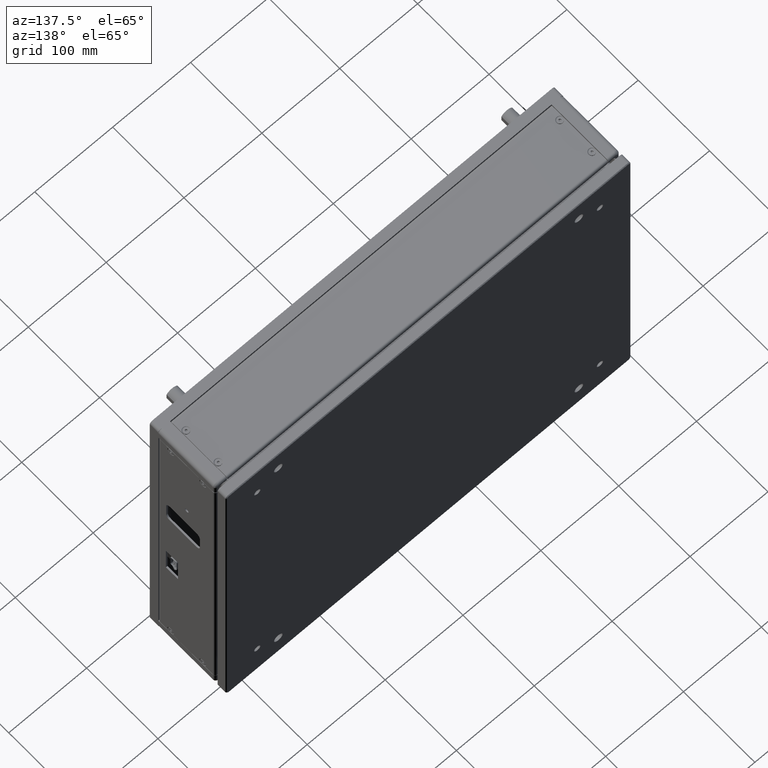
[diagram: clean part render]
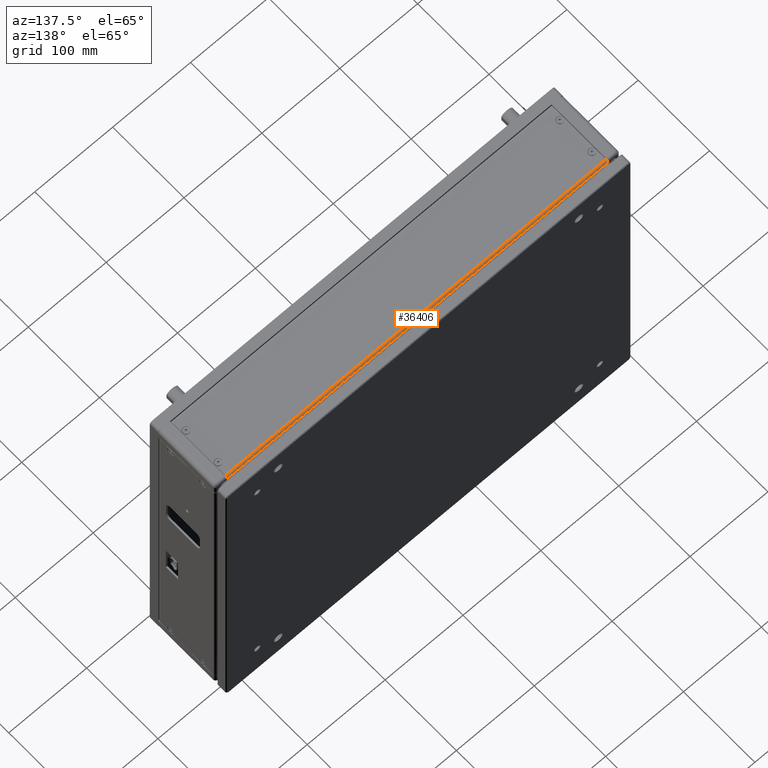
[diagram: same view with one face highlighted and labeled with its STEP entity id]
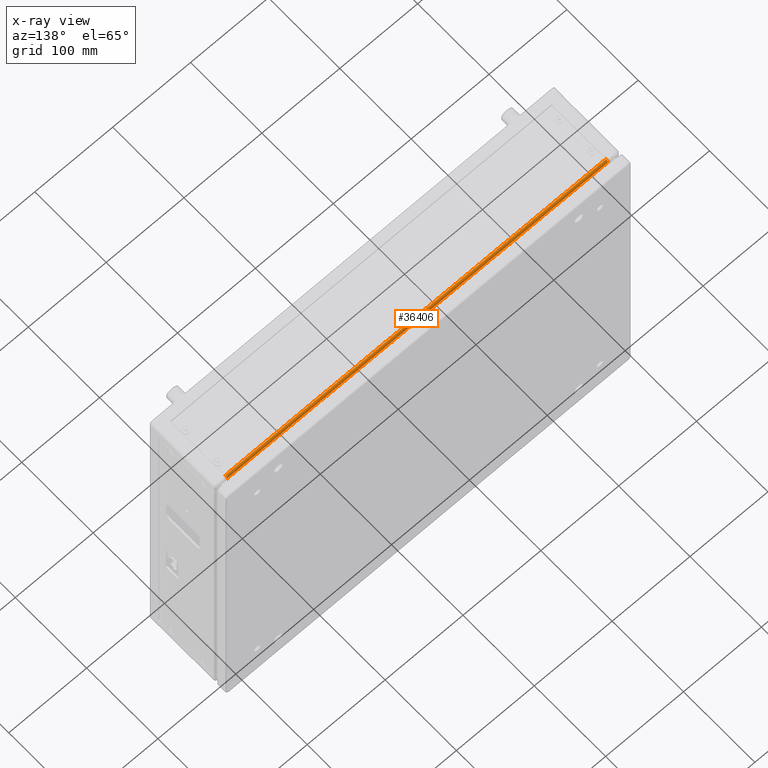
[diagram: x-ray of the same camera — body ghosted, the highlighted face saturated]
A machine part, auxiliary view. The second image highlights one B-rep face of the part: STEP entity #36406.
The next image is the same camera in x-ray: the body ghosted, the highlighted face saturated — about 0% of this face is hidden behind the body in this view.
In plain terms, the highlighted cylindrical surface (edge-blend (fillet) strip) has radius 2.7366 mm, axis along (1, 0, 0).
Its self-contained STEP definition (entity closure, byte-faithful):
#282 = CIRCLE ( 'NONE', #30672, 2.736599999999977939 ) ;
#621 = EDGE_CURVE ( 'NONE', #37031, #37152, #282, .T. ) ;
#3415 = DIRECTION ( 'NONE',  ( 0.000000000000000000, 0.000000000000000000, -1.000000000000000000 ) ) ;
#3705 = VERTEX_POINT ( 'NONE', #19692 ) ;
#3902 = CARTESIAN_POINT ( 'NONE',  ( 208.9512755979877738, 97.63718110050980670, 731.7633999999992511 ) ) ;
#5973 = DIRECTION ( 'NONE',  ( -1.000000000000000000, -0.000000000000000000, -0.000000000000000000 ) ) ;
#9212 = CARTESIAN_POINT ( 'NONE',  ( -280.0487244020122262, 94.90058110050982521, 731.7633999999992511 ) ) ;
#9575 = DIRECTION ( 'NONE',  ( 1.000000000000000000, 0.000000000000000000, 0.000000000000000000 ) ) ;
#9669 = CARTESIAN_POINT ( 'NONE',  ( 208.9512755979877738, 94.90058110050982521, 734.4999999999993179 ) ) ;
#9957 = CYLINDRICAL_SURFACE ( 'NONE', #17639, 2.736599999999977939 ) ;
#10043 = DIRECTION ( 'NONE',  ( -1.000000000000000000, -0.000000000000000000, -0.000000000000000000 ) ) ;
#13340 = AXIS2_PLACEMENT_3D ( 'NONE', #9212, #20936, #15159 ) ;
#13956 = CARTESIAN_POINT ( 'NONE',  ( -280.0487244020122262, 94.90058110050982521, 734.4999999999993179 ) ) ;
#14460 = VECTOR ( 'NONE', #5973, 1000.000000000000000 ) ;
#15159 = DIRECTION ( 'NONE',  ( 0.000000000000000000, 0.000000000000000000, -1.000000000000000000 ) ) ;
#15263 = CARTESIAN_POINT ( 'NONE',  ( 208.9512755979877738, 97.63718110050980670, 731.7633999999992511 ) ) ;
#15685 = ORIENTED_EDGE ( 'NONE', *, *, #26127, .F. ) ;
#16315 = ORIENTED_EDGE ( 'NONE', *, *, #32820, .F. ) ;
#16504 = CIRCLE ( 'NONE', #13340, 2.736599999999977939 ) ;
#17117 = LINE ( 'NONE', #13956, #38597 ) ;
#17311 = LINE ( 'NONE', #15263, #14460 ) ;
#17639 = AXIS2_PLACEMENT_3D ( 'NONE', #36927, #9575, #3415 ) ;
#19692 = CARTESIAN_POINT ( 'NONE',  ( -280.0487244020122262, 97.63718110050980670, 731.7633999999992511 ) ) ;
#20837 = EDGE_LOOP ( 'NONE', ( #38975, #16315, #15685, #33116 ) ) ;
#20936 = DIRECTION ( 'NONE',  ( -1.000000000000000000, -0.000000000000000000, -0.000000000000000000 ) ) ;
#21664 = FACE_OUTER_BOUND ( 'NONE', #20837, .T. ) ;
#21686 = CARTESIAN_POINT ( 'NONE',  ( -280.0487244020122262, 94.90058110050982521, 734.4999999999993179 ) ) ;
#22334 = CARTESIAN_POINT ( 'NONE',  ( 208.9512755979877738, 94.90058110050982521, 731.7633999999992511 ) ) ;
#26127 = EDGE_CURVE ( 'NONE', #37031, #29012, #17117, .T. ) ;
#29012 = VERTEX_POINT ( 'NONE', #21686 ) ;
#29226 = DIRECTION ( 'NONE',  ( -1.000000000000000000, -0.000000000000000000, -0.000000000000000000 ) ) ;
#30672 = AXIS2_PLACEMENT_3D ( 'NONE', #22334, #10043, #34235 ) ;
#32820 = EDGE_CURVE ( 'NONE', #29012, #3705, #16504, .T. ) ;
#33116 = ORIENTED_EDGE ( 'NONE', *, *, #621, .T. ) ;
#33222 = EDGE_CURVE ( 'NONE', #37152, #3705, #17311, .T. ) ;
#34235 = DIRECTION ( 'NONE',  ( 0.000000000000000000, 0.000000000000000000, -1.000000000000000000 ) ) ;
#36406 = ADVANCED_FACE ( 'NONE', ( #21664 ), #9957, .T. ) ;
#36927 = CARTESIAN_POINT ( 'NONE',  ( 208.9512755979877738, 94.90058110050982521, 731.7633999999992511 ) ) ;
#37031 = VERTEX_POINT ( 'NONE', #9669 ) ;
#37152 = VERTEX_POINT ( 'NONE', #3902 ) ;
#38597 = VECTOR ( 'NONE', #29226, 1000.000000000000000 ) ;
#38975 = ORIENTED_EDGE ( 'NONE', *, *, #33222, .T. ) ;